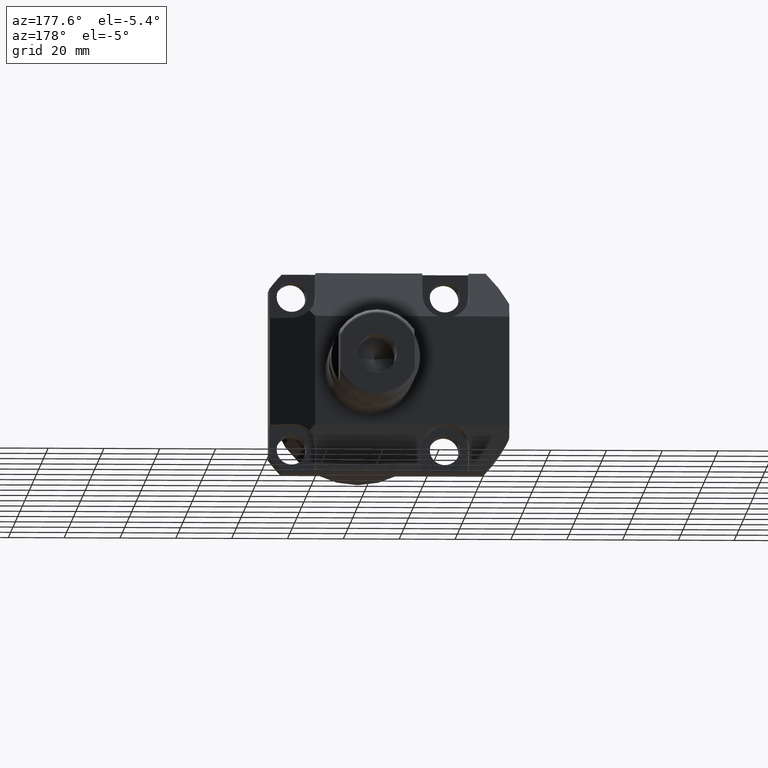
[diagram: clean part render]
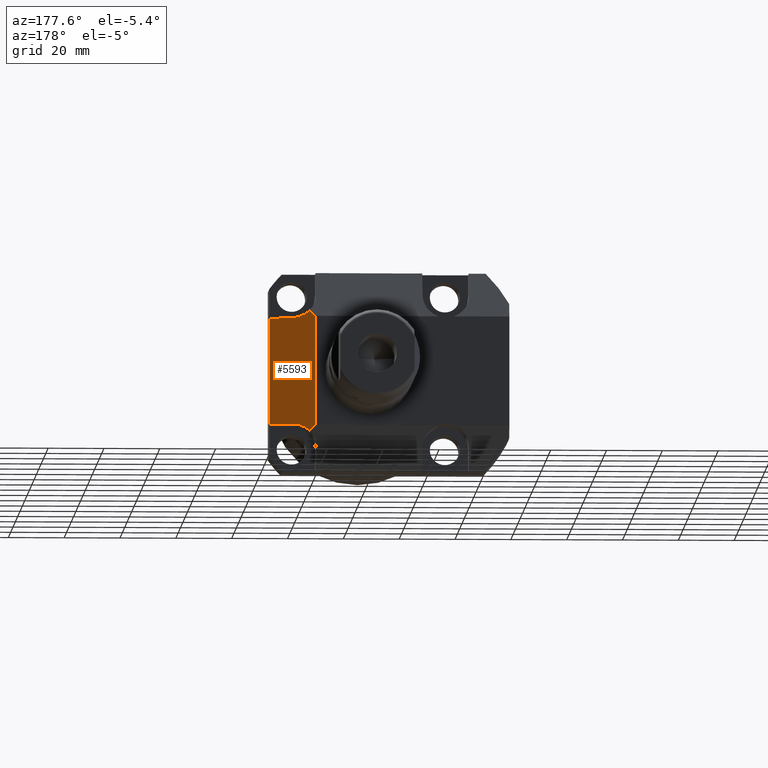
[diagram: same view with one face highlighted and labeled with its STEP entity id]
A machine part, auxiliary view. The second image highlights one B-rep face of the part: STEP entity #5593.
In plain terms, the highlighted planar face has unit normal (-0.342, -0.9397, 0).
Its self-contained STEP definition (entity closure, byte-faithful):
#1296=DIRECTION('',(-6.847910787717E-1,2.492435693640E-1,6.847910787717E-1));
#1297=VECTOR('',#1296,1.140040783108E-1);
#1298=CARTESIAN_POINT('',(8.480689757708E-1,4.083585216600E0,
-8.480689757708E-1));
#1299=LINE('',#1298,#1297);
#1390=DIRECTION('',(0.E0,0.E0,1.E0));
#1391=VECTOR('',#1390,1.54E0);
#1392=CARTESIAN_POINT('',(7.7E-1,4.112E0,-7.7E-1));
#1393=LINE('',#1392,#1391);
#1464=CARTESIAN_POINT('',(8.480689757708E-1,4.083585216600E0,
-8.480689757708E-1));
#1465=CARTESIAN_POINT('',(8.805818106935E-1,4.071751512456E0,
-8.155561408481E-1));
#1466=CARTESIAN_POINT('',(9.526552509743E-1,4.045518925513E0,
-7.694642533612E-1));
#1467=CARTESIAN_POINT('',(1.035384829031E0,4.015407821607E0,-7.52E-1));
#1468=CARTESIAN_POINT('',(1.08E0,3.999169227377E0,-7.52E-1));
#1473=CARTESIAN_POINT('',(1.08E0,3.999169227377E0,7.52E-1));
#1474=CARTESIAN_POINT('',(1.035384829031E0,4.015407821607E0,7.52E-1));
#1475=CARTESIAN_POINT('',(9.526552509743E-1,4.045518925513E0,
7.694642533612E-1));
#1476=CARTESIAN_POINT('',(8.805818106935E-1,4.071751512456E0,
8.155561408481E-1));
#1477=CARTESIAN_POINT('',(8.480689757708E-1,4.083585216600E0,
8.480689757708E-1));
#1664=DIRECTION('',(0.E0,0.E0,-1.E0));
#1665=VECTOR('',#1664,1.504E0);
#1666=CARTESIAN_POINT('',(1.395E0,3.884518603584E0,7.52E-1));
#1667=LINE('',#1666,#1665);
#1720=DIRECTION('',(9.396926207859E-1,-3.420201433257E-1,0.E0));
#1721=VECTOR('',#1720,3.352159983299E-1);
#1722=CARTESIAN_POINT('',(1.08E0,3.999169227377E0,-7.52E-1));
#1723=LINE('',#1722,#1721);
#1734=DIRECTION('',(9.396926207859E-1,-3.420201433257E-1,0.E0));
#1735=VECTOR('',#1734,3.352159983299E-1);
#1736=CARTESIAN_POINT('',(1.08E0,3.999169227377E0,7.52E-1));
#1737=LINE('',#1736,#1735);
#1781=DIRECTION('',(-6.847910787717E-1,2.492435693640E-1,-6.847910787717E-1));
#1782=VECTOR('',#1781,1.140040783108E-1);
#1783=CARTESIAN_POINT('',(8.480689757708E-1,4.083585216600E0,
8.480689757708E-1));
#1784=LINE('',#1783,#1782);
#4225=CARTESIAN_POINT('',(7.7E-1,4.112E0,-7.7E-1));
#4226=CARTESIAN_POINT('',(7.7E-1,4.112E0,7.7E-1));
#4227=VERTEX_POINT('',#4225);
#4228=VERTEX_POINT('',#4226);
#4229=CARTESIAN_POINT('',(1.395E0,3.884518603584E0,7.52E-1));
#4230=CARTESIAN_POINT('',(1.395E0,3.884518603584E0,-7.52E-1));
#4231=VERTEX_POINT('',#4229);
#4232=VERTEX_POINT('',#4230);
#4233=CARTESIAN_POINT('',(8.480689757708E-1,4.083585216600E0,
8.480689757708E-1));
#4234=VERTEX_POINT('',#4233);
#4235=CARTESIAN_POINT('',(8.480689757708E-1,4.083585216600E0,
-8.480689757708E-1));
#4236=VERTEX_POINT('',#4235);
#4316=VERTEX_POINT('',#1468);
#4317=VERTEX_POINT('',#1473);
#5572=CARTESIAN_POINT('',(7.7E-1,4.112E0,1.674E0));
#5573=DIRECTION('',(-3.420201433257E-1,-9.396926207859E-1,0.E0));
#5574=DIRECTION('',(9.396926207859E-1,-3.420201433257E-1,0.E0));
#5575=AXIS2_PLACEMENT_3D('',#5572,#5573,#5574);
#5576=PLANE('',#5575);
#5577=ORIENTED_EDGE('',*,*,#5499,.F.);
#5579=ORIENTED_EDGE('',*,*,#5578,.T.);
#5581=ORIENTED_EDGE('',*,*,#5580,.T.);
#5583=ORIENTED_EDGE('',*,*,#5582,.F.);
#5585=ORIENTED_EDGE('',*,*,#5584,.F.);
#5587=ORIENTED_EDGE('',*,*,#5586,.T.);
#5589=ORIENTED_EDGE('',*,*,#5588,.T.);
#5590=ORIENTED_EDGE('',*,*,#5550,.F.);
#5591=EDGE_LOOP('',(#5577,#5579,#5581,#5583,#5585,#5587,#5589,#5590));
#5592=FACE_OUTER_BOUND('',#5591,.F.);
#1469=B_SPLINE_CURVE_WITH_KNOTS('',3,(#1464,#1465,#1466,#1467,#1468),
.UNSPECIFIED.,.F.,.F.,(4,1,4),(0.E0,5.E-1,1.E0),.UNSPECIFIED.);
#1478=B_SPLINE_CURVE_WITH_KNOTS('',3,(#1473,#1474,#1475,#1476,#1477),
.UNSPECIFIED.,.F.,.F.,(4,1,4),(0.E0,5.E-1,1.E0),.UNSPECIFIED.);
#5499=EDGE_CURVE('',#4236,#4227,#1299,.T.);
#5550=EDGE_CURVE('',#4227,#4228,#1393,.T.);
#5578=EDGE_CURVE('',#4236,#4316,#1469,.T.);
#5580=EDGE_CURVE('',#4316,#4232,#1723,.T.);
#5582=EDGE_CURVE('',#4231,#4232,#1667,.T.);
#5584=EDGE_CURVE('',#4317,#4231,#1737,.T.);
#5586=EDGE_CURVE('',#4317,#4234,#1478,.T.);
#5588=EDGE_CURVE('',#4234,#4228,#1784,.T.);
#5593=ADVANCED_FACE('',(#5592),#5576,.F.);